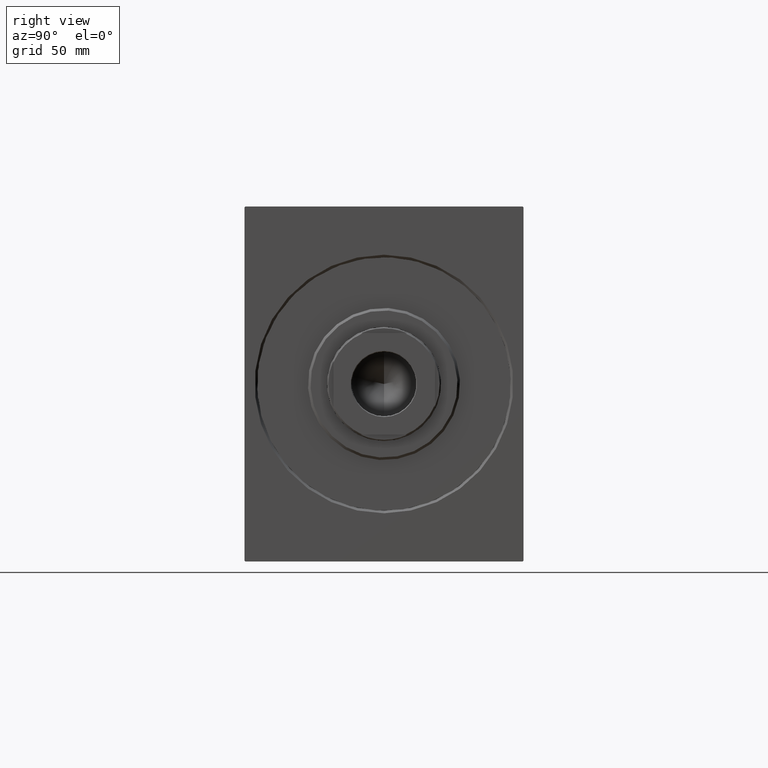
[diagram: clean part render]
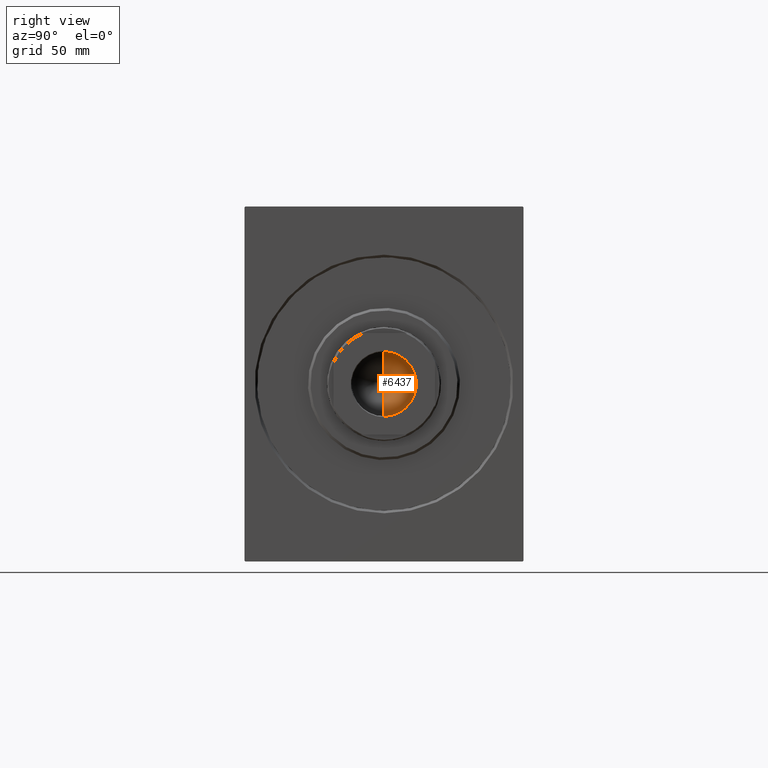
[diagram: same view with one face highlighted and labeled with its STEP entity id]
A machine part, right view. The second image highlights one B-rep face of the part: STEP entity #6437.
In plain terms, the highlighted conical surface has half-angle 59 deg.
Its self-contained STEP definition (entity closure, byte-faithful):
#738 = EDGE_LOOP ( 'NONE', ( #37945, #29758, #21180 ) ) ;
#4084 = CARTESIAN_POINT ( 'NONE',  ( 12.74999999999999112, 0.000000000000000000, 174.0000000000000284 ) ) ;
#5336 = DIRECTION ( 'NONE',  ( -0.000000000000000000, -0.000000000000000000, 1.000000000000000000 ) ) ;
#6119 = AXIS2_PLACEMENT_3D ( 'NONE', #35907, #5336, #18833 ) ;
#6437 = ADVANCED_FACE ( 'NONE', ( #35689 ), #40104, .F. ) ;
#6508 = CARTESIAN_POINT ( 'NONE',  ( -1.116069142310992010E-14, 0.000000000000000000, 166.3390271073986071 ) ) ;
#8636 = CIRCLE ( 'NONE', #29119, 12.74999999999999112 ) ;
#10856 = DIRECTION ( 'NONE',  ( -0.8571673007021118895, 1.049727191138618079E-16, 0.5150380749100549327 ) ) ;
#14170 = CARTESIAN_POINT ( 'NONE',  ( 12.74999999999999112, 0.000000000000000000, 174.0000000000000284 ) ) ;
#14849 = LINE ( 'NONE', #32135, #17147 ) ;
#17131 = CARTESIAN_POINT ( 'NONE',  ( 0.000000000000000000, 0.000000000000000000, 174.0000000000000284 ) ) ;
#17147 = VECTOR ( 'NONE', #10856, 1000.000000000000000 ) ;
#18833 = DIRECTION ( 'NONE',  ( 1.000000000000000000, 0.000000000000000000, 0.000000000000000000 ) ) ;
#19370 = VECTOR ( 'NONE', #19994, 1000.000000000000000 ) ;
#19994 = DIRECTION ( 'NONE',  ( 0.8571673007021118895, 0.000000000000000000, 0.5150380749100549327 ) ) ;
#20670 = DIRECTION ( 'NONE',  ( 1.000000000000000000, 0.000000000000000000, 0.000000000000000000 ) ) ;
#20937 = EDGE_CURVE ( 'NONE', #28352, #38783, #8636, .T. ) ;
#21180 = ORIENTED_EDGE ( 'NONE', *, *, #20937, .T. ) ;
#23567 = EDGE_CURVE ( 'NONE', #43403, #38783, #14849, .T. ) ;
#23912 = CARTESIAN_POINT ( 'NONE',  ( -12.74999999999999112, 1.561424668912874125E-15, 174.0000000000000284 ) ) ;
#26652 = LINE ( 'NONE', #14170, #19370 ) ;
#28352 = VERTEX_POINT ( 'NONE', #4084 ) ;
#29119 = AXIS2_PLACEMENT_3D ( 'NONE', #17131, #34209, #20670 ) ;
#29758 = ORIENTED_EDGE ( 'NONE', *, *, #31290, .T. ) ;
#31290 = EDGE_CURVE ( 'NONE', #43403, #28352, #26652, .T. ) ;
#32135 = CARTESIAN_POINT ( 'NONE',  ( -12.74999999999999112, 1.561424668912874125E-15, 174.0000000000000284 ) ) ;
#34209 = DIRECTION ( 'NONE',  ( -0.000000000000000000, -0.000000000000000000, 1.000000000000000000 ) ) ;
#35689 = FACE_OUTER_BOUND ( 'NONE', #738, .T. ) ;
#35907 = CARTESIAN_POINT ( 'NONE',  ( 0.000000000000000000, 0.000000000000000000, 174.0000000000000284 ) ) ;
#37945 = ORIENTED_EDGE ( 'NONE', *, *, #23567, .F. ) ;
#38783 = VERTEX_POINT ( 'NONE', #23912 ) ;
#40104 = CONICAL_SURFACE ( 'NONE', #6119, 12.74999999999999112, 1.029744258676653645 ) ;
#43403 = VERTEX_POINT ( 'NONE', #6508 ) ;